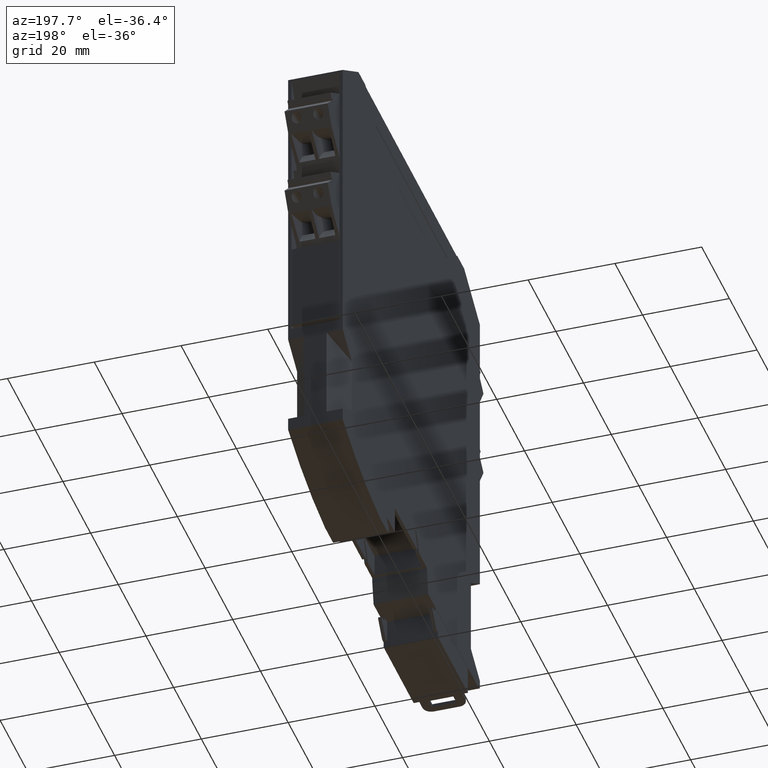
[diagram: clean part render]
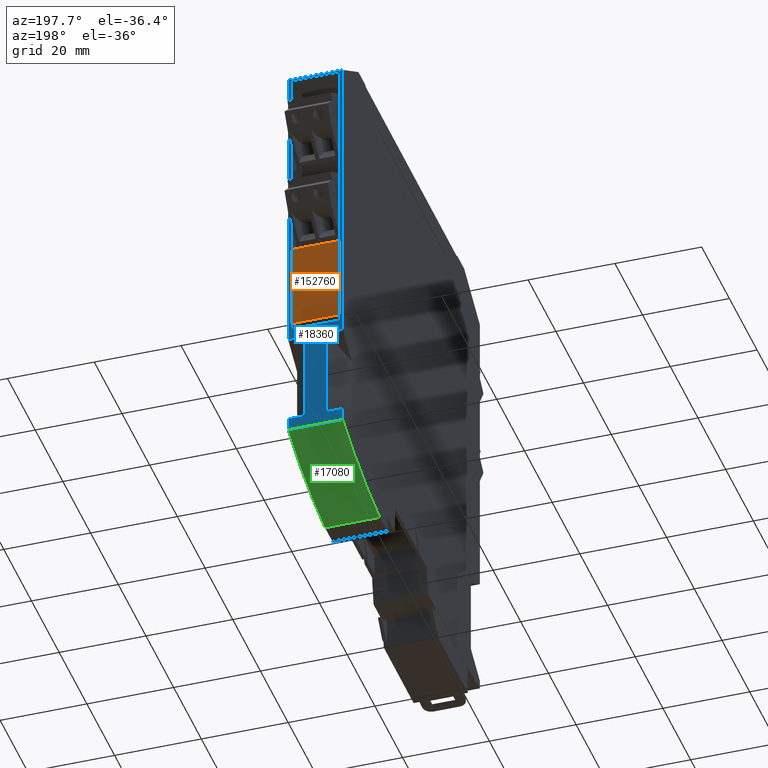
[diagram: same view with three faces highlighted in distinct colors, each labeled with its STEP entity id]
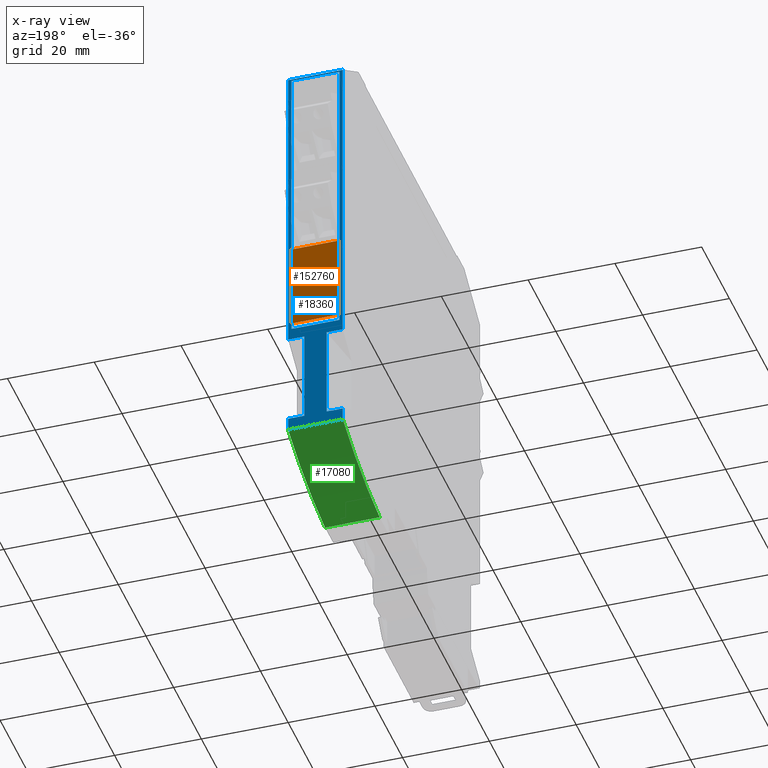
[diagram: x-ray of the same camera — body ghosted, the three highlighted faces saturated]
A machine part, auxiliary view with three faces highlighted in distinct colors.
The next image is the same camera in x-ray (body ghosted, the three faces saturated) — at least one of them is partly hidden behind the body in this view.
Their STEP definitions:

[orange] entity #152760 — the highlighted planar face has unit normal (-0, -1, -0).
#149310=CARTESIAN_POINT('',(-1.73069447662044E-9,1.7785070759246E-15,
21.106893047632));
#149320=VERTEX_POINT('',#149310);
#150670=CARTESIAN_POINT('',(-2.09039452414572E-11,1.77850707591867E-15,
0.885347224486269));
#150680=VERTEX_POINT('',#150670);
#150710=CARTESIAN_POINT('',(-2.19984030991327E-11,1.77850707591867E-15,
12.048928982531));
#150720=DIRECTION('',(-1.60485479232303E-19,-3.08148791101958E-33,-1.));
#150730=VECTOR('',#150720,1.);
#150740=LINE('',#150710,#150730);
#150750=EDGE_CURVE('',#149320,#150680,#150740,.T.);
#150920=CARTESIAN_POINT('',(-2.19984030991327E-11,11.,12.048928982531));
#150930=DIRECTION('',(-1.60485479232303E-19,-3.08148791101958E-33,-1.));
#150940=VECTOR('',#150930,1.);
#150950=LINE('',#150920,#150940);
#150960=CARTESIAN_POINT('',(-1.73069447662044E-9,11.,21.106893047632));
#150970=VERTEX_POINT('',#150960);
#150980=CARTESIAN_POINT('',(-2.09039452414572E-11,11.,0.885347224486269)
);
#150990=VERTEX_POINT('',#150980);
#151000=EDGE_CURVE('',#150970,#150990,#150950,.T.);
#152550=CARTESIAN_POINT('',(-2.09039452414572E-11,1.77850707591867E-15,
0.885347224486269));
#152560=DIRECTION('',(1.,-3.46944695195361E-18,-1.60485479232303E-19));
#152570=DIRECTION('',(-1.60485479232303E-19,-3.08148791101958E-33,-1.));
#152580=AXIS2_PLACEMENT_3D('',#152550,#152560,#152570);
#152590=PLANE('',#152580);
#152600=ORIENTED_EDGE('',*,*,#150750,.F.);
#152610=CARTESIAN_POINT('',(-2.09039452414572E-11,1.77850707591867E-15,
0.885347224486269));
#152620=DIRECTION('',(3.46944695195361E-18,1.,-3.08204470687633E-33));
#152630=VECTOR('',#152620,1.);
#152640=LINE('',#152610,#152630);
#152650=EDGE_CURVE('',#150680,#150990,#152640,.T.);
#152660=ORIENTED_EDGE('',*,*,#152650,.F.);
#152670=ORIENTED_EDGE('',*,*,#151000,.T.);
#152680=CARTESIAN_POINT('',(-1.73069447662044E-9,1.7785070759246E-15,
21.106893047632));
#152690=DIRECTION('',(3.46944695195361E-18,1.,-3.08204470687633E-33));
#152700=VECTOR('',#152690,1.);
#152710=LINE('',#152680,#152700);
#152720=EDGE_CURVE('',#149320,#150970,#152710,.T.);
#152730=ORIENTED_EDGE('',*,*,#152720,.T.);
#152740=EDGE_LOOP('',(#152730,#152670,#152660,#152600));
#152750=FACE_OUTER_BOUND('',#152740,.T.);
#152760=ADVANCED_FACE('',(#152750),#152590,.F.);

[blue] entity #18360 — the highlighted planar face has unit normal (0, 1, 0).
#100=CARTESIAN_POINT('',(12.5999992226559,99.0000000001657,
106.361694196857));
#110=VERTEX_POINT('',#100);
#160=CARTESIAN_POINT('',(12.5999992226559,99.0000000005153,
-45.6999999999939));
#170=DIRECTION('',(2.28384227811265E-18,-2.29927362408618E-12,1.));
#180=VECTOR('',#170,1.);
#190=LINE('',#160,#180);
#200=CARTESIAN_POINT('',(12.5999992226559,99.0000000003284,
35.5999999996861));
#210=VERTEX_POINT('',#200);
#220=EDGE_CURVE('',#210,#110,#190,.T.);
#440=CARTESIAN_POINT('',(12.5999992226559,99.0000000003781,
14.0000000373745));
#450=VERTEX_POINT('',#440);
#480=CARTESIAN_POINT('',(12.5999992226559,99.0000000003849,
11.0077156020573));
#490=VERTEX_POINT('',#480);
#500=EDGE_CURVE('',#490,#450,#190,.T.);
#13640=CARTESIAN_POINT('',(-6.65920651954366E-11,99.0000000003849,
11.0077156020573));
#13650=VERTEX_POINT('',#13640);
#13680=CARTESIAN_POINT('',(-6.65920651954366E-11,99.0000000005153,
-45.6999999999939));
#13690=DIRECTION('',(-2.22950086395226E-24,2.29927362408618E-12,-1.));
#13700=VECTOR('',#13690,1.);
#13710=LINE('',#13680,#13700);
#13720=CARTESIAN_POINT('',(-6.65920651954366E-11,99.0000000003781,
14.0000000001642));
#13730=VERTEX_POINT('',#13720);
#13740=EDGE_CURVE('',#13730,#13650,#13710,.T.);
#13960=CARTESIAN_POINT('',(-6.65920651954366E-11,99.0000000003284,
35.5999999998135));
#13970=VERTEX_POINT('',#13960);
#14000=CARTESIAN_POINT('',(-6.65920651954366E-11,99.0000000001657,
106.361694196857));
#14010=VERTEX_POINT('',#14000);
#14020=EDGE_CURVE('',#14010,#13970,#13710,.T.);
#16920=CARTESIAN_POINT('',(12.5999992226559,99.000000000385,
11.0077156020573));
#16930=DIRECTION('',(-1.,5.21592700555424E-36,2.28384227807285E-18));
#16940=VECTOR('',#16930,1.);
#16950=LINE('',#16920,#16940);
#16960=EDGE_CURVE('',#490,#13650,#16950,.T.);
#17400=CARTESIAN_POINT('',(6.34999922210019,99.0000000002119,
86.2869169998576));
#17410=DIRECTION('',(5.2511835274728E-30,1.,2.29927362408618E-12));
#17420=DIRECTION('',(2.28384227807285E-18,-2.29927362408618E-12,1.));
#17430=AXIS2_PLACEMENT_3D('',#17400,#17410,#17420);
#17440=PLANE('',#17430);
#17450=CARTESIAN_POINT('',(8.79999999946697,99.0000000001657,
106.361694196857));
#17460=DIRECTION('',(1.,-5.21592700543322E-36,-2.28384227807285E-18));
#17470=VECTOR('',#17460,1.);
#17480=LINE('',#17450,#17470);
#17490=EDGE_CURVE('',#14010,#110,#17480,.T.);
#17500=ORIENTED_EDGE('',*,*,#17490,.T.);
#17510=ORIENTED_EDGE('',*,*,#14020,.F.);
#17520=CARTESIAN_POINT('',(8.79999999946697,99.0000000003284,
35.599999999808));
#17530=DIRECTION('',(-1.,-1.44787390452742E-24,6.29709387784303E-13));
#17540=VECTOR('',#17530,1.);
#17550=LINE('',#17520,#17540);
#17560=CARTESIAN_POINT('',(3.75277674902748,99.0000000003284,
35.5999999998111));
#17570=VERTEX_POINT('',#17560);
#17580=EDGE_CURVE('',#17570,#13970,#17550,.T.);
#17590=ORIENTED_EDGE('',*,*,#17580,.T.);
#17600=CARTESIAN_POINT('',(3.7527767491354,99.0000000005153,
-45.6999999999939));
#17610=DIRECTION('',(1.32748528054302E-12,2.29927362408618E-12,-1.));
#17620=VECTOR('',#17610,1.);
#17630=LINE('',#17600,#17620);
#17640=CARTESIAN_POINT('',(3.75277674905615,99.0000000003781,
14.0000000001665));
#17650=VERTEX_POINT('',#17640);
#17660=EDGE_CURVE('',#17570,#17650,#17630,.T.);
#17670=ORIENTED_EDGE('',*,*,#17660,.F.);
#17680=CARTESIAN_POINT('',(8.79999999946697,99.0000000003781,
14.0000000001697));
#17690=DIRECTION('',(1.,-1.44787390453193E-24,6.2970938778646E-13));
#17700=VECTOR('',#17690,1.);
#17710=LINE('',#17680,#17700);
#17720=EDGE_CURVE('',#13730,#17650,#17710,.T.);
#17730=ORIENTED_EDGE('',*,*,#17720,.T.);
#17740=ORIENTED_EDGE('',*,*,#13740,.F.);
#17750=ORIENTED_EDGE('',*,*,#16960,.T.);
#17760=ORIENTED_EDGE('',*,*,#500,.F.);
#17770=CARTESIAN_POINT('',(8.79999999946697,99.0000000003781,
14.0000000373745));
#17780=DIRECTION('',(1.,-5.21614600798184E-36,-2.28384227807285E-18));
#17790=VECTOR('',#17780,1.);
#17800=LINE('',#17770,#17790);
#17810=CARTESIAN_POINT('',(8.8472224724845,99.0000000003781,
14.0000000373745));
#17820=VERTEX_POINT('',#17810);
#17830=EDGE_CURVE('',#17820,#450,#17800,.T.);
#17840=ORIENTED_EDGE('',*,*,#17830,.T.);
#17850=CARTESIAN_POINT('',(8.84722247234199,99.0000000005153,
-45.6999999999939));
#17860=DIRECTION('',(-2.38698479592466E-12,2.29927362408618E-12,-1.));
#17870=VECTOR('',#17860,1.);
#17880=LINE('',#17850,#17870);
#17890=CARTESIAN_POINT('',(8.84722247253605,99.0000000003284,
35.5999999996861));
#17900=VERTEX_POINT('',#17890);
#17910=EDGE_CURVE('',#17900,#17820,#17880,.T.);
#17920=ORIENTED_EDGE('',*,*,#17910,.T.);
#17930=CARTESIAN_POINT('',(8.79999999946697,99.0000000003284,
35.5999999996861));
#17940=DIRECTION('',(-1.,5.21592700543322E-36,2.28384227807285E-18));
#17950=VECTOR('',#17940,1.);
#17960=LINE('',#17930,#17950);
#17970=EDGE_CURVE('',#210,#17900,#17960,.T.);
#17980=ORIENTED_EDGE('',*,*,#17970,.T.);
#17990=ORIENTED_EDGE('',*,*,#220,.F.);
#18000=EDGE_LOOP('',(#17990,#17980,#17920,#17840,#17760,#17750,#17740,
#17730,#17670,#17590,#17510,#17500));
#18010=FACE_OUTER_BOUND('',#18000,.T.);
#18020=CARTESIAN_POINT('',(8.79999999946697,99.0000000001665,
106.031423188015));
#18030=DIRECTION('',(1.,-3.41486193656334E-24,1.48520054236851E-12));
#18040=VECTOR('',#18030,1.);
#18050=LINE('',#18020,#18040);
#18060=CARTESIAN_POINT('',(0.749999222530525,99.0000000001665,
106.031423188003));
#18070=VERTEX_POINT('',#18060);
#18080=CARTESIAN_POINT('',(11.8499992222009,99.0000000001665,
106.03142318802));
#18090=VERTEX_POINT('',#18080);
#18100=EDGE_CURVE('',#18070,#18090,#18050,.T.);
#18110=ORIENTED_EDGE('',*,*,#18100,.F.);
#18120=CARTESIAN_POINT('',(11.8499992222009,99.0000000005153,
-45.6999999999939));
#18130=DIRECTION('',(-2.28384356735118E-18,2.29927362408618E-12,-1.));
#18140=VECTOR('',#18130,1.);
#18150=LINE('',#18120,#18140);
#18160=CARTESIAN_POINT('',(11.8499984449712,99.0000000003221,
38.3317897318748));
#18170=VERTEX_POINT('',#18160);
#18180=EDGE_CURVE('',#18090,#18170,#18150,.T.);
#18190=ORIENTED_EDGE('',*,*,#18180,.F.);
#18200=CARTESIAN_POINT('',(8.79999999946697,99.0000000003221,
38.3317897318729));
#18210=DIRECTION('',(1.,-1.44715044762465E-24,6.29396449563815E-13));
#18220=VECTOR('',#18210,1.);
#18230=LINE('',#18200,#18220);
#18240=CARTESIAN_POINT('',(0.749998445300879,99.0000000003221,
38.3317897318678));
#18250=VERTEX_POINT('',#18240);
#18260=EDGE_CURVE('',#18250,#18170,#18230,.T.);
#18270=ORIENTED_EDGE('',*,*,#18260,.T.);
#18280=CARTESIAN_POINT('',(0.749999222530521,99.0000000005153,
-45.6999999999939));
#18290=DIRECTION('',(2.28383982645918E-18,-2.29927362408618E-12,1.));
#18300=VECTOR('',#18290,1.);
#18310=LINE('',#18280,#18300);
#18320=EDGE_CURVE('',#18250,#18070,#18310,.T.);
#18330=ORIENTED_EDGE('',*,*,#18320,.F.);
#18340=EDGE_LOOP('',(#18330,#18270,#18190,#18110));
#18350=FACE_BOUND('',#18340,.T.);
#18360=ADVANCED_FACE('',(#18010,#18350),#17440,.T.);

[green] entity #17080 — the highlighted cylindrical surface (partial cylindrical patch) has radius 80 mm, axis along (-1, 0, 0).
#480=CARTESIAN_POINT('',(12.5999992226559,99.0000000003849,
11.0077156020573));
#490=VERTEX_POINT('',#480);
#520=CARTESIAN_POINT('',(12.5999992226559,63.0000000001872,
82.4499999999246));
#530=DIRECTION('',(-1.,5.21592700555424E-36,2.28384227807285E-18));
#540=DIRECTION('',(4.191076862855E-30,-1.,1.83510136361891E-12));
#550=AXIS2_PLACEMENT_3D('',#520,#530,#540);
#560=CIRCLE('',#550,80.);
#570=CARTESIAN_POINT('',(12.5999992226559,72.3646943356782,
2.99999999990685));
#580=VERTEX_POINT('',#570);
#590=EDGE_CURVE('',#490,#580,#560,.T.);
#13550=CARTESIAN_POINT('',(-4.07638367505569E-11,72.364694335678,
2.99999999990685));
#13560=VERTEX_POINT('',#13550);
#13590=CARTESIAN_POINT('',(-3.16848769443823E-11,63.0000000001872,
82.4499999999246));
#13600=DIRECTION('',(-1.,5.21592700555424E-36,2.28384227807285E-18));
#13610=DIRECTION('',(4.191076862855E-30,-1.,1.83510136361891E-12));
#13620=AXIS2_PLACEMENT_3D('',#13590,#13600,#13610);
#13630=CIRCLE('',#13620,80.);
#13640=CARTESIAN_POINT('',(-6.65920651954366E-11,99.0000000003849,
11.0077156020573));
#13650=VERTEX_POINT('',#13640);
#13660=EDGE_CURVE('',#13650,#13560,#13630,.T.);
#16870=CARTESIAN_POINT('',(12.5999992226559,63.0000000001872,
82.4499999999246));
#16880=DIRECTION('',(-1.,5.21592700555424E-36,2.28384227807285E-18));
#16890=DIRECTION('',(4.191076862855E-30,-1.,1.83510136361891E-12));
#16900=AXIS2_PLACEMENT_3D('',#16870,#16880,#16890);
#16910=CYLINDRICAL_SURFACE('',#16900,80.);
#16920=CARTESIAN_POINT('',(12.5999992226559,99.000000000385,
11.0077156020573));
#16930=DIRECTION('',(-1.,5.21592700555424E-36,2.28384227807285E-18));
#16940=VECTOR('',#16930,1.);
#16950=LINE('',#16920,#16940);
#16960=EDGE_CURVE('',#490,#13650,#16950,.T.);
#16970=ORIENTED_EDGE('',*,*,#16960,.F.);
#16980=ORIENTED_EDGE('',*,*,#13660,.F.);
#16990=CARTESIAN_POINT('',(12.5999992226559,72.364694335678,
2.99999999990685));
#17000=DIRECTION('',(-1.,5.21592700555424E-36,2.28384227807285E-18));
#17010=VECTOR('',#17000,1.);
#17020=LINE('',#16990,#17010);
#17030=EDGE_CURVE('',#580,#13560,#17020,.T.);
#17040=ORIENTED_EDGE('',*,*,#17030,.T.);
#17050=ORIENTED_EDGE('',*,*,#590,.T.);
#17060=EDGE_LOOP('',(#17050,#17040,#16980,#16970));
#17070=FACE_OUTER_BOUND('',#17060,.T.);
#17080=ADVANCED_FACE('',(#17070),#16910,.T.);